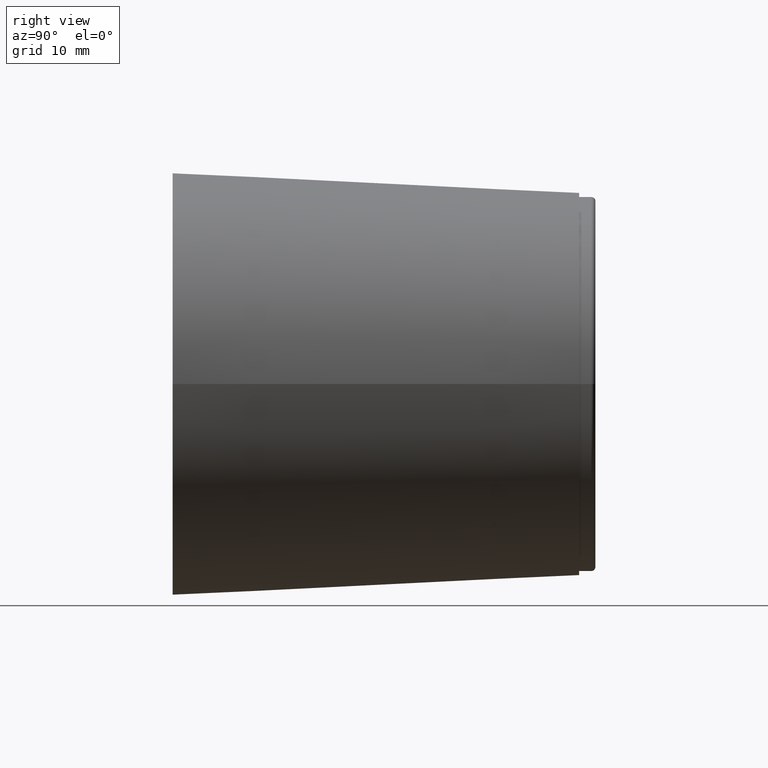
[diagram: clean part render]
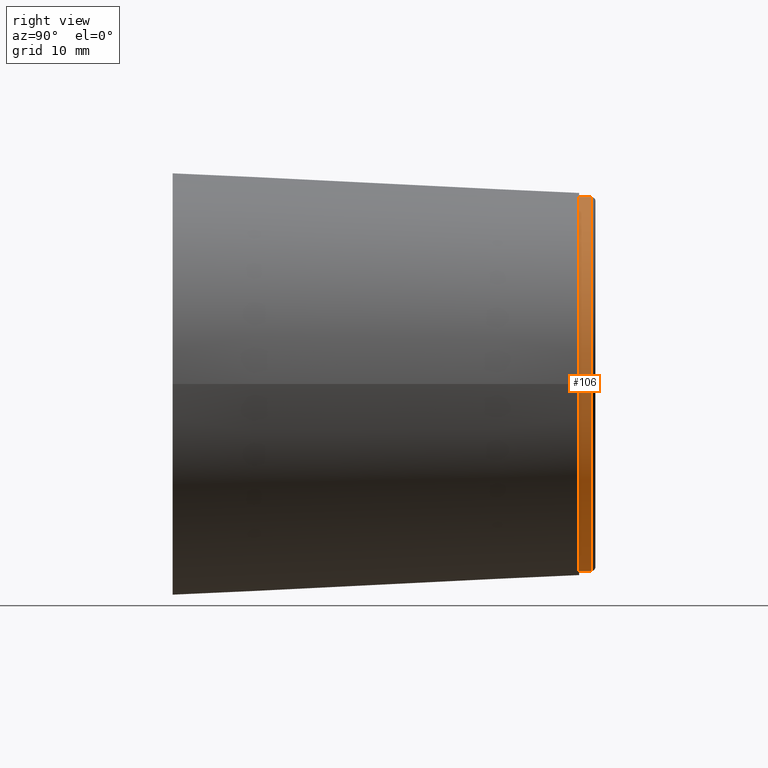
[diagram: same view with one face highlighted and labeled with its STEP entity id]
A machine part, right view. The second image highlights one B-rep face of the part: STEP entity #106.
In plain terms, the highlighted cylindrical surface (bore or boss wall) has radius 23 mm, axis along (0, 1, 0).
Its self-contained STEP definition (entity closure, byte-faithful):
#20=CYLINDRICAL_SURFACE('',#119,23.);
#24=FACE_BOUND('',#44,.T.);
#33=FACE_OUTER_BOUND('',#43,.T.);
#43=EDGE_LOOP('',(#88));
#44=EDGE_LOOP('',(#89));
#59=CIRCLE('',#117,23.);
#61=CIRCLE('',#120,23.);
#68=VERTEX_POINT('',#174);
#70=VERTEX_POINT('',#179);
#77=EDGE_CURVE('',#68,#68,#59,.T.);
#79=EDGE_CURVE('',#70,#70,#61,.T.);
#88=ORIENTED_EDGE('',*,*,#79,.F.);
#89=ORIENTED_EDGE('',*,*,#77,.F.);
#106=ADVANCED_FACE('',(#33,#24),#20,.T.);
#117=AXIS2_PLACEMENT_3D('',#175,#138,#139);
#119=AXIS2_PLACEMENT_3D('',#178,#142,#143);
#120=AXIS2_PLACEMENT_3D('',#180,#144,#145);
#138=DIRECTION('center_axis',(0.,1.,0.));
#139=DIRECTION('ref_axis',(-1.,0.,0.));
#142=DIRECTION('center_axis',(0.,1.,0.));
#143=DIRECTION('ref_axis',(-1.,0.,0.));
#144=DIRECTION('center_axis',(0.,-1.,0.));
#145=DIRECTION('ref_axis',(-1.,0.,0.));
#174=CARTESIAN_POINT('',(23.,51.5,-2.81668763803891E-15));
#175=CARTESIAN_POINT('Origin',(0.,51.5,0.));
#178=CARTESIAN_POINT('Origin',(0.,50.,0.));
#179=CARTESIAN_POINT('',(23.,50.,-2.81668763803891E-15));
#180=CARTESIAN_POINT('Origin',(0.,50.,0.));